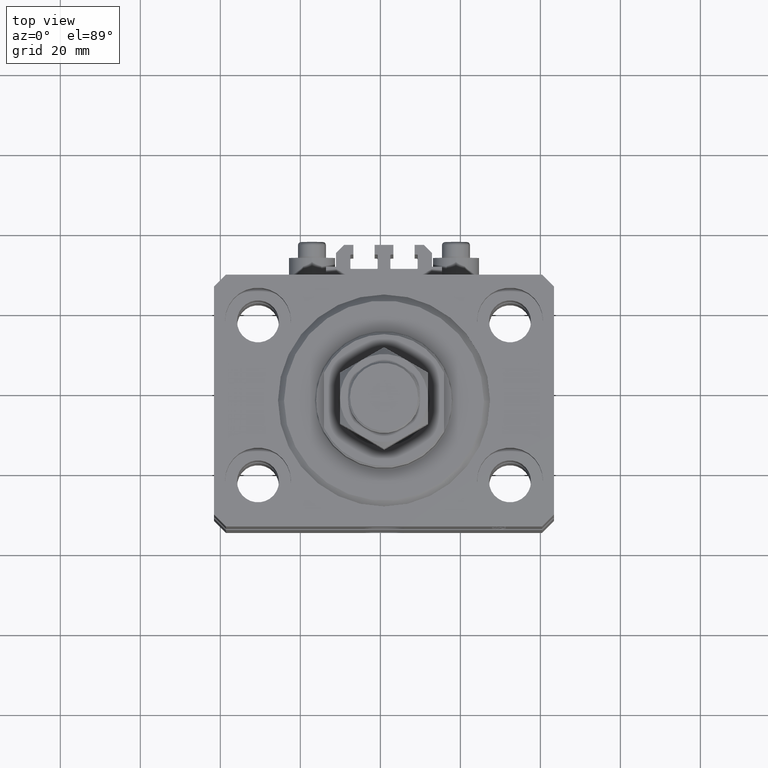
[diagram: clean part render]
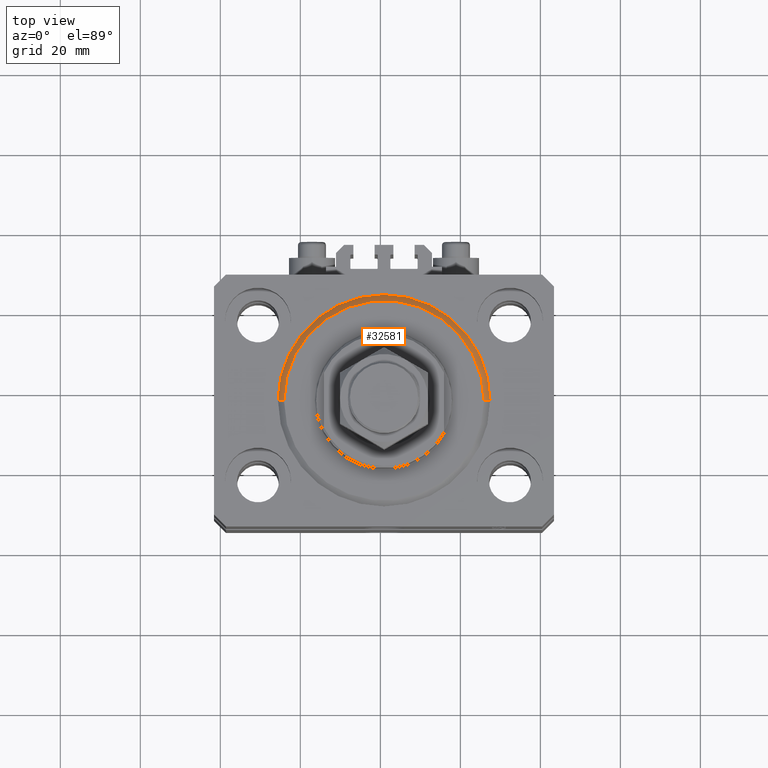
[diagram: same view with one face highlighted and labeled with its STEP entity id]
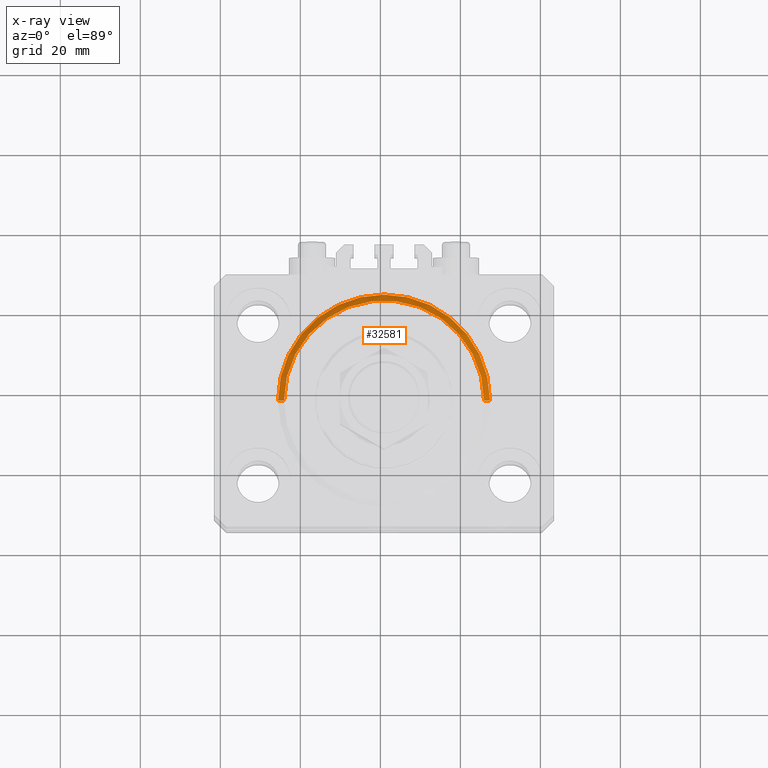
[diagram: x-ray of the same camera — body ghosted, the highlighted face saturated]
A machine part, top view. The second image highlights one B-rep face of the part: STEP entity #32581.
The next image is the same camera in x-ray: the body ghosted, the highlighted face saturated — about 0% of this face is hidden behind the body in this view.
In plain terms, the highlighted conical surface has half-angle 45 deg.
Its self-contained STEP definition (entity closure, byte-faithful):
#1140 = ORIENTED_EDGE ( 'NONE', *, *, #49182, .F. ) ;
#1455 = EDGE_CURVE ( 'NONE', #8431, #16347, #22127, .T. ) ;
#5305 = DIRECTION ( 'NONE',  ( -0.000000000000000000, -0.000000000000000000, -1.000000000000000000 ) ) ;
#5356 = CARTESIAN_POINT ( 'NONE',  ( 24.99999999999998224, 0.000000000000000000, 0.000000000000000000 ) ) ;
#5461 = DIRECTION ( 'NONE',  ( 1.000000000000000000, 0.000000000000000000, 0.000000000000000000 ) ) ;
#6944 = VERTEX_POINT ( 'NONE', #5356 ) ;
#7455 = VECTOR ( 'NONE', #17887, 1000.000000000000000 ) ;
#8431 = VERTEX_POINT ( 'NONE', #26038 ) ;
#10660 = CARTESIAN_POINT ( 'NONE',  ( -26.50000000000000355, 3.245314017740486554E-15, 1.500000000000018652 ) ) ;
#13027 = CARTESIAN_POINT ( 'NONE',  ( 0.000000000000000000, 0.000000000000000000, 0.000000000000000000 ) ) ;
#14878 = AXIS2_PLACEMENT_3D ( 'NONE', #31869, #19426, #23670 ) ;
#15618 = LINE ( 'NONE', #19100, #46438 ) ;
#16347 = VERTEX_POINT ( 'NONE', #31102 ) ;
#17887 = DIRECTION ( 'NONE',  ( -0.7071067811865483499, 8.659560562354942719E-17, 0.7071067811865466846 ) ) ;
#18499 = EDGE_CURVE ( 'NONE', #6944, #39488, #15618, .T. ) ;
#19100 = CARTESIAN_POINT ( 'NONE',  ( 26.50000000000000355, 0.000000000000000000, 1.500000000000018652 ) ) ;
#19426 = DIRECTION ( 'NONE',  ( -0.000000000000000000, -0.000000000000000000, 1.000000000000000000 ) ) ;
#22127 = LINE ( 'NONE', #10660, #7455 ) ;
#23670 = DIRECTION ( 'NONE',  ( 1.000000000000000000, 0.000000000000000000, 0.000000000000000000 ) ) ;
#24882 = DIRECTION ( 'NONE',  ( -0.000000000000000000, -0.000000000000000000, 1.000000000000000000 ) ) ;
#25343 = EDGE_LOOP ( 'NONE', ( #1140, #32948, #31855, #42820 ) ) ;
#25550 = CARTESIAN_POINT ( 'NONE',  ( 26.50000000000000355, 3.245314017740486554E-15, 1.500000000000018652 ) ) ;
#26038 = CARTESIAN_POINT ( 'NONE',  ( -24.99999999999998224, 3.153465507804433615E-15, 0.000000000000000000 ) ) ;
#28219 = DIRECTION ( 'NONE',  ( 1.000000000000000000, 0.000000000000000000, 0.000000000000000000 ) ) ;
#31102 = CARTESIAN_POINT ( 'NONE',  ( -26.50000000000000355, 0.000000000000000000, 1.500000000000018652 ) ) ;
#31855 = ORIENTED_EDGE ( 'NONE', *, *, #32783, .F. ) ;
#31869 = CARTESIAN_POINT ( 'NONE',  ( 0.000000000000000000, 0.000000000000000000, 1.500000000000018652 ) ) ;
#32581 = ADVANCED_FACE ( 'NONE', ( #39342 ), #38840, .T. ) ;
#32783 = EDGE_CURVE ( 'NONE', #39488, #16347, #36342, .T. ) ;
#32948 = ORIENTED_EDGE ( 'NONE', *, *, #1455, .T. ) ;
#34549 = DIRECTION ( 'NONE',  ( 0.7071067811865483499, 0.000000000000000000, 0.7071067811865466846 ) ) ;
#36342 = CIRCLE ( 'NONE', #37988, 26.50000000000000355 ) ;
#37988 = AXIS2_PLACEMENT_3D ( 'NONE', #47788, #24882, #5461 ) ;
#38840 = CONICAL_SURFACE ( 'NONE', #14878, 26.50000000000000355, 0.7853981633974495002 ) ;
#39342 = FACE_OUTER_BOUND ( 'NONE', #25343, .T. ) ;
#39488 = VERTEX_POINT ( 'NONE', #25550 ) ;
#41193 = CIRCLE ( 'NONE', #44338, 24.99999999999998224 ) ;
#42820 = ORIENTED_EDGE ( 'NONE', *, *, #18499, .F. ) ;
#44338 = AXIS2_PLACEMENT_3D ( 'NONE', #13027, #5305, #28219 ) ;
#46438 = VECTOR ( 'NONE', #34549, 1000.000000000000000 ) ;
#47788 = CARTESIAN_POINT ( 'NONE',  ( 0.000000000000000000, 0.000000000000000000, 1.500000000000018652 ) ) ;
#49182 = EDGE_CURVE ( 'NONE', #8431, #6944, #41193, .T. ) ;